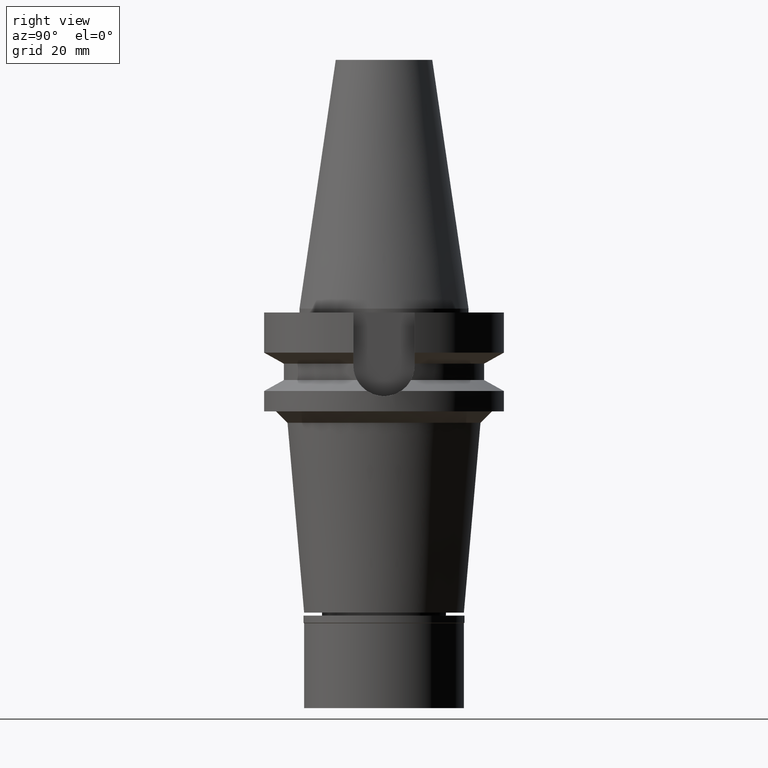
[diagram: clean part render]
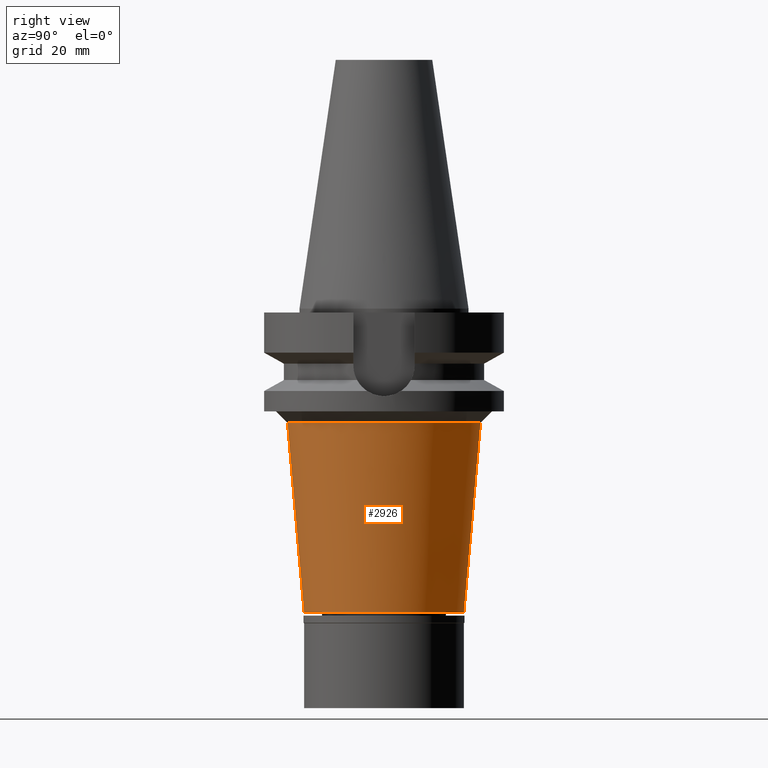
[diagram: same view with one face highlighted and labeled with its STEP entity id]
A machine part, right view. The second image highlights one B-rep face of the part: STEP entity #2926.
In plain terms, the highlighted conical surface has half-angle 5 deg.
Its self-contained STEP definition (entity closure, byte-faithful):
#116 = DIRECTION ( 'NONE',  ( 0.0000000000000000000, 0.08715574274763414342, -0.9961946980917475436 ) ) ;
#153 = AXIS2_PLACEMENT_3D ( 'NONE', #1127, #1923, #2642 ) ;
#182 = VERTEX_POINT ( 'NONE', #1775 ) ;
#183 = DIRECTION ( 'NONE',  ( 0.0000000000000000000, 1.000000000000000000, 0.0000000000000000000 ) ) ;
#301 = VERTEX_POINT ( 'NONE', #457 ) ;
#457 = CARTESIAN_POINT ( 'NONE',  ( 0.0000000000000000000, -21.00000000000000000, -79.90000000000000568 ) ) ;
#628 = ORIENTED_EDGE ( 'NONE', *, *, #2735, .F. ) ;
#793 = DIRECTION ( 'NONE',  ( 0.0000000000000000000, 0.0000000000000000000, 1.000000000000000000 ) ) ;
#813 = CARTESIAN_POINT ( 'NONE',  ( 0.0000000000000000000, 21.00000000000000000, -79.90000000000000568 ) ) ;
#843 = LINE ( 'NONE', #2796, #2292 ) ;
#950 = EDGE_CURVE ( 'NONE', #301, #1837, #2845, .T. ) ;
#1023 = CARTESIAN_POINT ( 'NONE',  ( 0.0000000000000000000, 25.36568430994000067, -30.00000000000000000 ) ) ;
#1081 = CARTESIAN_POINT ( 'NONE',  ( 0.0000000000000000000, 0.0000000000000000000, -54.94999999999999574 ) ) ;
#1125 = FACE_OUTER_BOUND ( 'NONE', #1710, .T. ) ;
#1127 = CARTESIAN_POINT ( 'NONE',  ( 0.0000000000000000000, 0.0000000000000000000, -79.90000000000000568 ) ) ;
#1161 = AXIS2_PLACEMENT_3D ( 'NONE', #2995, #793, #2757 ) ;
#1171 = ORIENTED_EDGE ( 'NONE', *, *, #1935, .F. ) ;
#1635 = CARTESIAN_POINT ( 'NONE',  ( 0.0000000000000000000, -25.36568430994000067, -30.00000000000000000 ) ) ;
#1710 = EDGE_LOOP ( 'NONE', ( #1171, #3017, #2196, #628 ) ) ;
#1775 = CARTESIAN_POINT ( 'NONE',  ( 0.0000000000000000000, 25.36568430994000067, -30.00000000000000000 ) ) ;
#1783 = DIRECTION ( 'NONE',  ( 0.0000000000000000000, -0.08715574274763414342, -0.9961946980917475436 ) ) ;
#1837 = VERTEX_POINT ( 'NONE', #813 ) ;
#1923 = DIRECTION ( 'NONE',  ( 0.0000000000000000000, 0.0000000000000000000, 1.000000000000000000 ) ) ;
#1930 = AXIS2_PLACEMENT_3D ( 'NONE', #1081, #2790, #183 ) ;
#1935 = EDGE_CURVE ( 'NONE', #2373, #182, #2551, .T. ) ;
#2037 = CONICAL_SURFACE ( 'NONE', #1930, 23.18284215497000034, 0.08726646259969973729 ) ;
#2085 = EDGE_CURVE ( 'NONE', #2373, #301, #843, .T. ) ;
#2196 = ORIENTED_EDGE ( 'NONE', *, *, #950, .T. ) ;
#2292 = VECTOR ( 'NONE', #116, 1000.000000000000114 ) ;
#2373 = VERTEX_POINT ( 'NONE', #1635 ) ;
#2551 = CIRCLE ( 'NONE', #1161, 25.36568430994000067 ) ;
#2642 = DIRECTION ( 'NONE',  ( 0.0000000000000000000, -1.000000000000000000, 0.0000000000000000000 ) ) ;
#2735 = EDGE_CURVE ( 'NONE', #182, #1837, #2989, .T. ) ;
#2757 = DIRECTION ( 'NONE',  ( 0.0000000000000000000, -1.000000000000000000, 0.0000000000000000000 ) ) ;
#2790 = DIRECTION ( 'NONE',  ( 0.0000000000000000000, 0.0000000000000000000, 1.000000000000000000 ) ) ;
#2796 = CARTESIAN_POINT ( 'NONE',  ( 0.0000000000000000000, -25.36568430994000067, -30.00000000000000000 ) ) ;
#2845 = CIRCLE ( 'NONE', #153, 21.00000000000000000 ) ;
#2854 = VECTOR ( 'NONE', #1783, 1000.000000000000114 ) ;
#2926 = ADVANCED_FACE ( 'NONE', ( #1125 ), #2037, .T. ) ;
#2989 = LINE ( 'NONE', #1023, #2854 ) ;
#2995 = CARTESIAN_POINT ( 'NONE',  ( 0.0000000000000000000, 0.0000000000000000000, -30.00000000000000000 ) ) ;
#3017 = ORIENTED_EDGE ( 'NONE', *, *, #2085, .T. ) ;